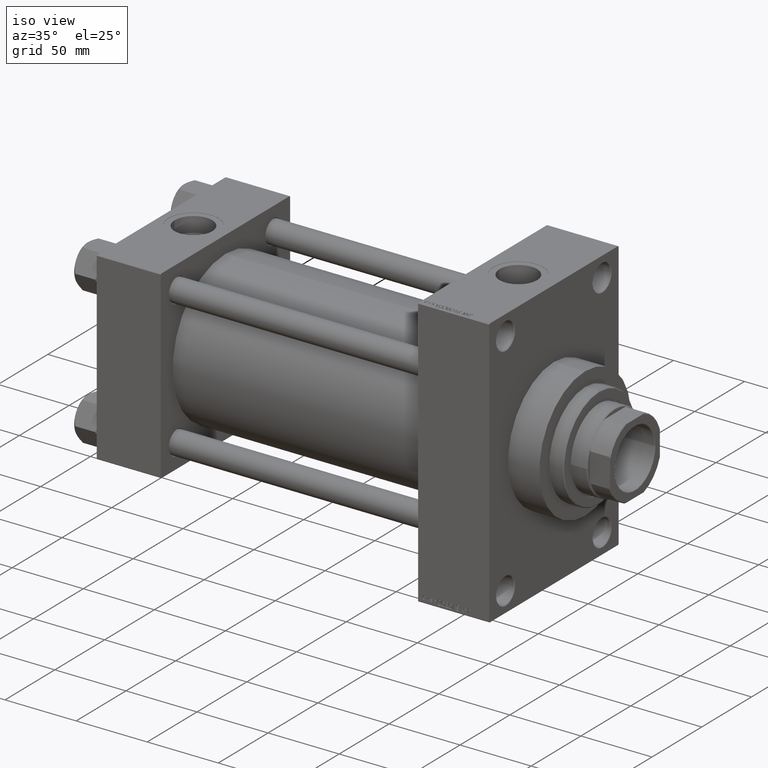
[diagram: clean part render]
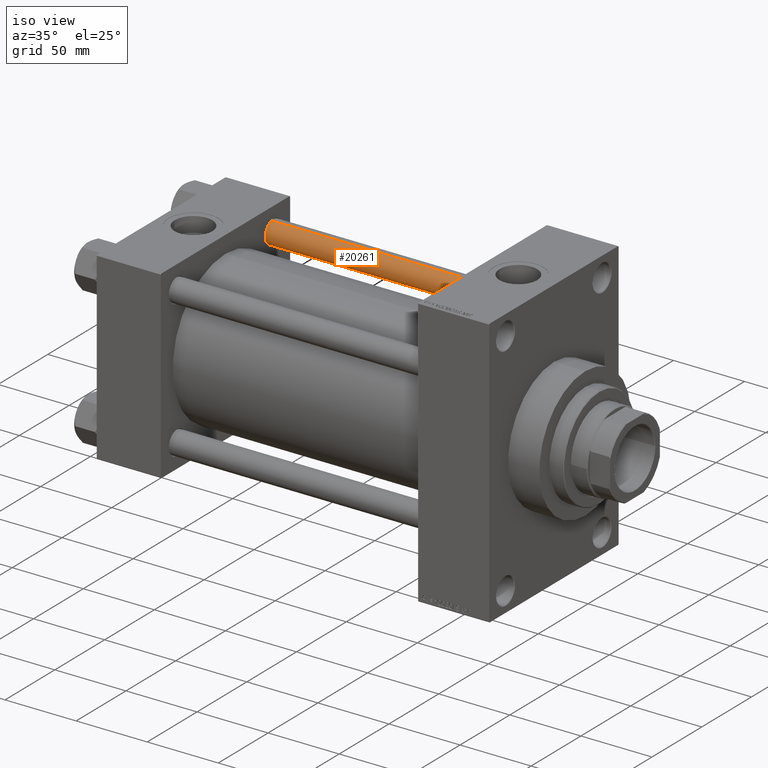
[diagram: same view with one face highlighted and labeled with its STEP entity id]
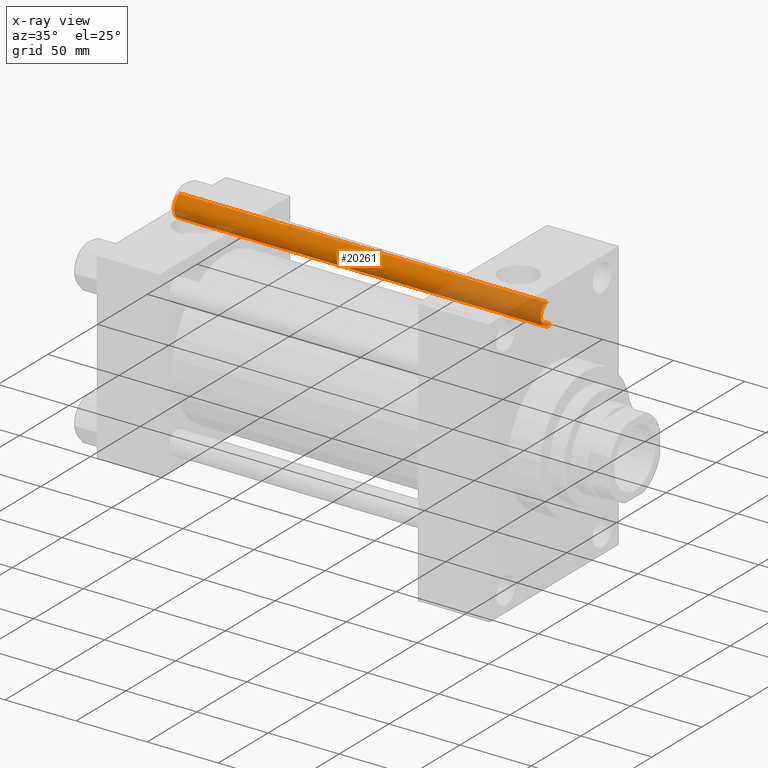
[diagram: x-ray of the same camera — body ghosted, the highlighted face saturated]
A machine part, iso view. The second image highlights one B-rep face of the part: STEP entity #20261.
The next image is the same camera in x-ray: the body ghosted, the highlighted face saturated — about 29% of this face is hidden behind the body in this view.
In plain terms, the highlighted cylindrical surface (edge-blend (fillet) strip) has radius 8 mm, axis along (-1, -0, 0).
Its self-contained STEP definition (entity closure, byte-faithful):
#1137 = EDGE_CURVE ( 'NONE', #26635, #43503, #10675, .T. ) ;
#2681 = LINE ( 'NONE', #34822, #5816 ) ;
#2900 = CARTESIAN_POINT ( 'NONE',  ( -8.000000000000000000, 0.000000000000000000, 258.4999999999999432 ) ) ;
#3700 = CARTESIAN_POINT ( 'NONE',  ( 8.000000000000000000, 9.797174393178825657E-16, 0.4999999999999449329 ) ) ;
#3963 = AXIS2_PLACEMENT_3D ( 'NONE', #22833, #34192, #4952 ) ;
#4813 = LINE ( 'NONE', #37208, #17397 ) ;
#4881 = ORIENTED_EDGE ( 'NONE', *, *, #37636, .T. ) ;
#4952 = DIRECTION ( 'NONE',  ( -1.000000000000000000, 0.000000000000000000, 0.000000000000000000 ) ) ;
#5592 = CARTESIAN_POINT ( 'NONE',  ( 8.000000000000000000, 9.797174393178825657E-16, 258.4999999999999432 ) ) ;
#5816 = VECTOR ( 'NONE', #9196, 1000.000000000000000 ) ;
#7556 = DIRECTION ( 'NONE',  ( -0.000000000000000000, -0.000000000000000000, 1.000000000000000000 ) ) ;
#9196 = DIRECTION ( 'NONE',  ( -0.000000000000000000, -0.000000000000000000, -1.000000000000000000 ) ) ;
#10675 = CIRCLE ( 'NONE', #21461, 8.000000000000000000 ) ;
#11332 = ORIENTED_EDGE ( 'NONE', *, *, #1137, .T. ) ;
#11774 = CARTESIAN_POINT ( 'NONE',  ( -8.000000000000000000, 0.000000000000000000, 0.4999999999999449329 ) ) ;
#12211 = ORIENTED_EDGE ( 'NONE', *, *, #14981, .T. ) ;
#12266 = AXIS2_PLACEMENT_3D ( 'NONE', #25934, #7556, #23015 ) ;
#13899 = EDGE_LOOP ( 'NONE', ( #29350, #11332, #4881, #12211 ) ) ;
#14981 = EDGE_CURVE ( 'NONE', #29927, #21852, #22315, .T. ) ;
#17397 = VECTOR ( 'NONE', #30672, 1000.000000000000000 ) ;
#20261 = ADVANCED_FACE ( 'NONE', ( #37809 ), #38041, .T. ) ;
#21461 = AXIS2_PLACEMENT_3D ( 'NONE', #45131, #30888, #34270 ) ;
#21852 = VERTEX_POINT ( 'NONE', #3700 ) ;
#22315 = CIRCLE ( 'NONE', #12266, 8.000000000000000000 ) ;
#22833 = CARTESIAN_POINT ( 'NONE',  ( 0.000000000000000000, 0.000000000000000000, 259.0000000000000000 ) ) ;
#23015 = DIRECTION ( 'NONE',  ( 1.000000000000000000, 0.000000000000000000, 0.000000000000000000 ) ) ;
#25934 = CARTESIAN_POINT ( 'NONE',  ( 0.000000000000000000, 0.000000000000000000, 0.4999999999999449329 ) ) ;
#26635 = VERTEX_POINT ( 'NONE', #5592 ) ;
#29350 = ORIENTED_EDGE ( 'NONE', *, *, #37403, .F. ) ;
#29927 = VERTEX_POINT ( 'NONE', #11774 ) ;
#30672 = DIRECTION ( 'NONE',  ( -0.000000000000000000, -0.000000000000000000, -1.000000000000000000 ) ) ;
#30888 = DIRECTION ( 'NONE',  ( 0.000000000000000000, 0.000000000000000000, -1.000000000000000000 ) ) ;
#34192 = DIRECTION ( 'NONE',  ( -0.000000000000000000, -0.000000000000000000, -1.000000000000000000 ) ) ;
#34270 = DIRECTION ( 'NONE',  ( 1.000000000000000000, 0.000000000000000000, 0.000000000000000000 ) ) ;
#34822 = CARTESIAN_POINT ( 'NONE',  ( 8.000000000000000000, 9.797174393178825657E-16, 259.0000000000000000 ) ) ;
#37208 = CARTESIAN_POINT ( 'NONE',  ( -8.000000000000000000, 0.000000000000000000, 259.0000000000000000 ) ) ;
#37403 = EDGE_CURVE ( 'NONE', #26635, #21852, #2681, .T. ) ;
#37636 = EDGE_CURVE ( 'NONE', #43503, #29927, #4813, .T. ) ;
#37809 = FACE_OUTER_BOUND ( 'NONE', #13899, .T. ) ;
#38041 = CYLINDRICAL_SURFACE ( 'NONE', #3963, 8.000000000000000000 ) ;
#43503 = VERTEX_POINT ( 'NONE', #2900 ) ;
#45131 = CARTESIAN_POINT ( 'NONE',  ( 0.000000000000000000, 0.000000000000000000, 258.4999999999999432 ) ) ;